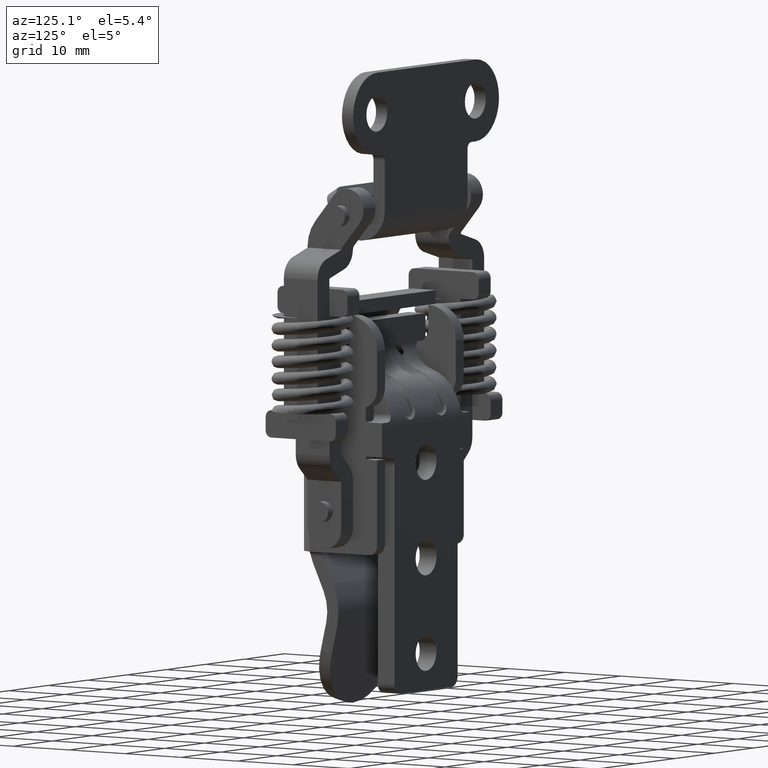
[diagram: clean part render]
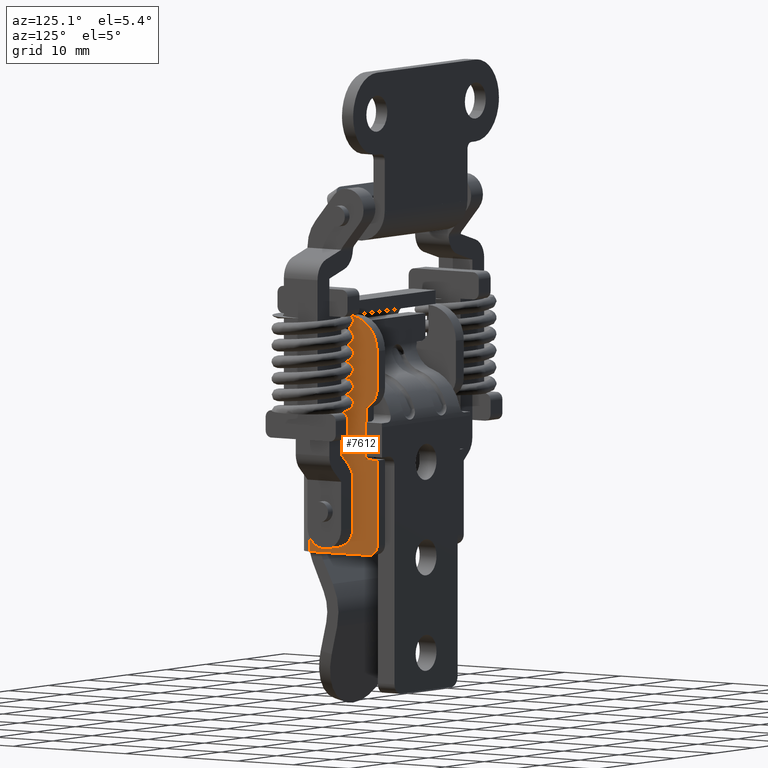
[diagram: same view with one face highlighted and labeled with its STEP entity id]
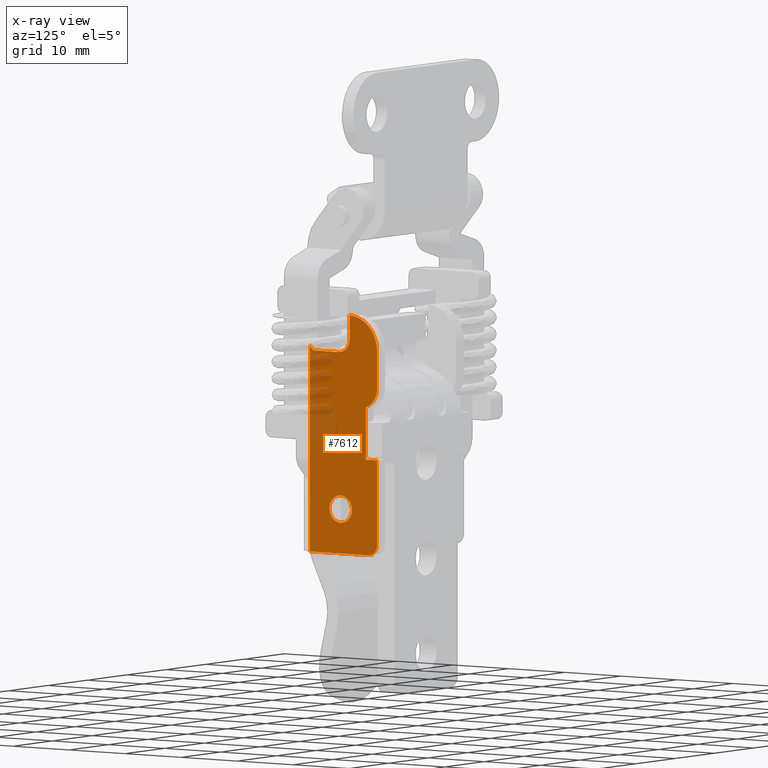
[diagram: x-ray of the same camera — body ghosted, the highlighted face saturated]
A machine part, auxiliary view. The second image highlights one B-rep face of the part: STEP entity #7612.
The next image is the same camera in x-ray: the body ghosted, the highlighted face saturated — about 15% of this face is hidden behind the body in this view.
In plain terms, the highlighted face is a freeform B-spline surface patch.
Its self-contained STEP definition (entity closure, byte-faithful):
#5285=CARTESIAN_POINT('',(-4.291483995006892,-11.000000000000121,-41.972888630195001));
#5286=VERTEX_POINT('',#5285);
#5292=CARTESIAN_POINT('',(-4.999999999999999,-11.000000000000121,-43.499999954217863));
#5293=VERTEX_POINT('',#5292);
#5294=CARTESIAN_POINT('',(-4.291483995006892,-11.000000000000121,-41.972888630195001));
#5295=CARTESIAN_POINT('',(-4.499059651854829,-11.000000000000140,-42.147990680828123));
#5296=CARTESIAN_POINT('',(-4.760872264341311,-11.000000000000130,-42.482652996387984));
#5297=CARTESIAN_POINT('',(-4.962180740116382,-11.000000000000091,-43.029425976598610));
#5298=CARTESIAN_POINT('',(-5.000043574163755,-11.000000000000140,-43.337094152139237));
#5299=CARTESIAN_POINT('',(-4.999999999999999,-11.000000000000121,-43.499999954217863));
#5300=B_SPLINE_CURVE_WITH_KNOTS('',3,(#5294,#5295,#5296,#5297,#5298,#5299),.UNSPECIFIED.,.F.,.U.,(4,1,1,4),(0.000000020191724,0.814527024682359,1.248940701058276,1.737656673800343),.UNSPECIFIED.);
#5301=EDGE_CURVE('',#5286,#5293,#5300,.T.);
#5303=CARTESIAN_POINT('',(-3.0,-11.000000000000121,-45.500000000000000));
#5304=VERTEX_POINT('',#5303);
#5305=CARTESIAN_POINT('',(-4.999999999999999,-11.000000000000121,-43.499999954217863));
#5306=CARTESIAN_POINT('',(-5.000232893937127,-11.000000000000121,-43.745481762936073));
#5307=CARTESIAN_POINT('',(-4.935928455159613,-11.000000000000130,-44.088923891692872));
#5308=CARTESIAN_POINT('',(-4.732438216345659,-11.000000000000110,-44.519042590588462));
#5309=CARTESIAN_POINT('',(-4.505257277712324,-11.000000000000091,-44.841675177487829));
#5310=CARTESIAN_POINT('',(-4.187660449178591,-11.000000000000240,-45.129507053089696));
#5311=CARTESIAN_POINT('',(-3.686979104396376,-10.999999999999950,-45.413234050378669));
#5312=CARTESIAN_POINT('',(-3.278236847398707,-11.000000000000171,-45.500363365382889));
#5313=CARTESIAN_POINT('',(-3.0,-11.000000000000121,-45.500000000000000));
#5314=B_SPLINE_CURVE_WITH_KNOTS('',3,(#5305,#5306,#5307,#5308,#5309,#5310,#5311,#5312,#5313),.UNSPECIFIED.,.F.,.U.,(4,1,1,1,1,1,4),(0.000000109287217,0.736328465034302,1.030872301551919,1.423597483130916,1.914442521069211,2.307164167641461,3.141671514477208),.UNSPECIFIED.);
#5315=EDGE_CURVE('',#5293,#5304,#5314,.T.);
#5317=CARTESIAN_POINT('',(-1.0,-11.000000000000121,-43.500000045782151));
#5318=VERTEX_POINT('',#5317);
#5319=CARTESIAN_POINT('',(-3.0,-11.000000000000121,-45.500000000000000));
#5320=CARTESIAN_POINT('',(-2.754525882083019,-11.000000000000121,-45.500229522294468));
#5321=CARTESIAN_POINT('',(-2.345636194098678,-11.000000000000099,-45.423694946626142));
#5322=CARTESIAN_POINT('',(-1.865842955906063,-11.000000000000149,-45.167210674664631));
#5323=CARTESIAN_POINT('',(-1.567084296858053,-11.000000000000080,-44.909441657476300));
#5324=CARTESIAN_POINT('',(-1.296400857213571,-11.000000000000130,-44.579732225921909));
#5325=CARTESIAN_POINT('',(-1.065864801101518,-11.000000000000091,-44.121726346756482));
#5326=CARTESIAN_POINT('',(-0.999885430079744,-11.000000000000190,-43.712721838774428));
#5327=CARTESIAN_POINT('',(-1.0,-11.000000000000121,-43.500000045782151));
#5328=B_SPLINE_CURVE_WITH_KNOTS('',3,(#5319,#5320,#5321,#5322,#5323,#5324,#5325,#5326,#5327),.UNSPECIFIED.,.F.,.U.,(4,1,1,1,1,1,4),(0.000000109351611,0.736328452988263,1.227229082603999,1.619910960187034,1.914442489567019,2.503526581004880,3.141671462868775),.UNSPECIFIED.);
#5329=EDGE_CURVE('',#5304,#5318,#5328,.T.);
#5331=CARTESIAN_POINT('',(-1.549251244249942,-11.000000000000121,-42.123290879680731));
#5332=VERTEX_POINT('',#5331);
#5333=CARTESIAN_POINT('',(-1.0,-11.000000000000121,-43.500000045782151));
#5334=CARTESIAN_POINT('',(-0.999808939140219,-11.000000000000140,-43.262714713948220));
#5335=CARTESIAN_POINT('',(-1.091199977921949,-11.000000000000091,-42.756731853773992));
#5336=CARTESIAN_POINT('',(-1.363884933868887,-11.000000000000130,-42.318146222506890));
#5337=CARTESIAN_POINT('',(-1.549251244249942,-11.000000000000121,-42.123290879680731));
#5338=B_SPLINE_CURVE_WITH_KNOTS('',3,(#5333,#5334,#5335,#5336,#5337),.UNSPECIFIED.,.F.,.U.,(4,1,4),(0.000000029561401,0.711790516781408,1.518472064632104),.UNSPECIFIED.);
#5339=EDGE_CURVE('',#5318,#5332,#5338,.T.);
#5422=CARTESIAN_POINT('',(-3.0,-11.000000000000121,-41.499999999999993));
#5423=VERTEX_POINT('',#5422);
#5424=CARTESIAN_POINT('',(-1.549251244249942,-11.000000000000121,-42.123290879680731));
#5425=CARTESIAN_POINT('',(-1.723677819643127,-11.000000000000140,-41.939120538585527));
#5426=CARTESIAN_POINT('',(-2.059825475271998,-11.000000000000091,-41.698961127562519));
#5427=CARTESIAN_POINT('',(-2.577310564112401,-11.000000000000171,-41.529262185559077));
#5428=CARTESIAN_POINT('',(-2.864737635372440,-11.000000000000080,-41.499987124638743));
#5429=CARTESIAN_POINT('',(-3.0,-11.000000000000121,-41.499999999999993));
#5430=B_SPLINE_CURVE_WITH_KNOTS('',3,(#5424,#5425,#5426,#5427,#5428,#5429),.UNSPECIFIED.,.F.,.U.,(4,1,1,4),(0.000000025641365,0.760878537669743,1.217399798464708,1.623199722740326),.UNSPECIFIED.);
#5431=EDGE_CURVE('',#5332,#5423,#5430,.T.);
#5433=CARTESIAN_POINT('',(-3.0,-11.000000000000121,-41.499999999999993));
#5434=CARTESIAN_POINT('',(-3.160876361157747,-11.000000000000110,-41.499967234089077));
#5435=CARTESIAN_POINT('',(-3.467983732235572,-11.000000000000140,-41.537250085232976));
#5436=CARTESIAN_POINT('',(-3.910096836120375,-11.000000000000110,-41.699140412338217));
#5437=CARTESIAN_POINT('',(-4.168669120274050,-11.000000000000140,-41.868972966070643));
#5438=CARTESIAN_POINT('',(-4.291483995006892,-11.000000000000121,-41.972888630195001));
#5439=B_SPLINE_CURVE_WITH_KNOTS('',3,(#5433,#5434,#5435,#5436,#5437,#5438),.UNSPECIFIED.,.F.,.U.,(4,1,1,4),(0.000000028633374,0.482632374895624,0.921385096471227,1.404017442734281),.UNSPECIFIED.);
#5440=EDGE_CURVE('',#5423,#5286,#5439,.T.);
#6251=CARTESIAN_POINT('',(-8.500000000000000,-11.0,-19.500000000000000));
#6252=VERTEX_POINT('',#6251);
#6253=CARTESIAN_POINT('',(-8.500000000000000,-11.0,-50.0));
#6254=VERTEX_POINT('',#6253);
#6255=CARTESIAN_POINT('',(-8.500000000000000,-11.0,-19.500000000000000));
#6256=CARTESIAN_POINT('',(-8.500000000000000,-11.0,-50.0));
#6257=QUASI_UNIFORM_CURVE('',1,(#6255,#6256),.UNSPECIFIED.,.F.,.U.);
#6258=EDGE_CURVE('',#6252,#6254,#6257,.T.);
#6376=CARTESIAN_POINT('',(-7.500000000000000,-11.0,-20.500000000000000));
#6377=VERTEX_POINT('',#6376);
#6378=CARTESIAN_POINT('',(-7.500000000000000,-11.0,-20.500000000000000));
#6379=CARTESIAN_POINT('',(-7.639114365187614,-11.0,-20.500173166053472));
#6380=CARTESIAN_POINT('',(-7.908911365779431,-11.000000000000080,-20.442758200303089));
#6381=CARTESIAN_POINT('',(-8.243171951140948,-11.0,-20.207554079325650));
#6382=CARTESIAN_POINT('',(-8.452761596919794,-11.000000000000149,-19.876305140630549));
#6383=CARTESIAN_POINT('',(-8.500082295815099,-10.999999999999950,-19.622723591202480));
#6384=CARTESIAN_POINT('',(-8.500000000000000,-11.0,-19.500000000000000));
#6385=B_SPLINE_CURVE_WITH_KNOTS('',3,(#6378,#6379,#6380,#6381,#6382,#6383,#6384),.UNSPECIFIED.,.F.,.U.,(4,1,1,1,4),(0.000000217520590,0.417255448876048,0.809930199186788,1.202673212298888,1.570835744366267),.UNSPECIFIED.);
#6386=EDGE_CURVE('',#6377,#6252,#6385,.T.);
#7010=CARTESIAN_POINT('',(-1.400000000000000,-11.000000000000121,-18.500000000000000));
#7011=VERTEX_POINT('',#7010);
#7012=CARTESIAN_POINT('',(-1.400000000000000,-11.0,-15.001000100020200));
#7013=VERTEX_POINT('',#7012);
#7014=CARTESIAN_POINT('',(-1.400000000000000,-11.000000000000121,-18.500000000000000));
#7015=CARTESIAN_POINT('',(-1.400000000000000,-11.0,-15.001000100020200));
#7016=QUASI_UNIFORM_CURVE('',1,(#7014,#7015),.UNSPECIFIED.,.F.,.U.);
#7017=EDGE_CURVE('',#7011,#7013,#7016,.T.);
#7091=CARTESIAN_POINT('',(-3.400000000000000,-11.000000000000121,-20.500000000000000));
#7092=VERTEX_POINT('',#7091);
#7093=CARTESIAN_POINT('',(-3.400000000000000,-11.000000000000121,-20.500000000000000));
#7094=CARTESIAN_POINT('',(-3.154547919894856,-11.000000000000149,-20.500198515271979));
#7095=CARTESIAN_POINT('',(-2.712865042211105,-11.000000000000060,-20.417651658598711));
#7096=CARTESIAN_POINT('',(-2.209212151610323,-11.000000000000210,-20.132246367744401));
#7097=CARTESIAN_POINT('',(-1.875822816006951,-10.999999999999970,-19.814765183649801));
#7098=CARTESIAN_POINT('',(-1.648618051955657,-11.000000000000330,-19.492162623796499));
#7099=CARTESIAN_POINT('',(-1.455345840241121,-10.999999999999931,-19.056259940534972));
#7100=CARTESIAN_POINT('',(-1.399893200525664,-11.000000000000201,-18.712724541039211));
#7101=CARTESIAN_POINT('',(-1.400000000000000,-11.000000000000121,-18.500000000000000));
#7102=B_SPLINE_CURVE_WITH_KNOTS('',3,(#7093,#7094,#7095,#7096,#7097,#7098,#7099,#7100,#7101),.UNSPECIFIED.,.F.,.U.,(4,1,1,1,1,1,4),(0.000000109320285,0.736328459012082,1.325418916271050,1.718074126515646,2.110799304877890,2.503526601580130,3.141671488672994),.UNSPECIFIED.);
#7103=EDGE_CURVE('',#7092,#7011,#7102,.T.);
#7190=CARTESIAN_POINT('',(-7.500000000000000,-11.0,-20.500000000000000));
#7191=CARTESIAN_POINT('',(-3.400000000000000,-11.000000000000121,-20.500000000000000));
#7192=QUASI_UNIFORM_CURVE('',1,(#7190,#7191),.UNSPECIFIED.,.F.,.U.);
#7193=EDGE_CURVE('',#6377,#7092,#7192,.T.);
#7519=CARTESIAN_POINT('',(-9.099399976741672,-11.0,-13.252800451396631));
#7520=CARTESIAN_POINT('',(4.099400298606753,-11.0,-13.252800451396631));
#7521=CARTESIAN_POINT('',(-9.099399976741672,-11.0,-51.748200900285347));
#7522=CARTESIAN_POINT('',(4.099400298606753,-11.0,-51.748200900285347));
#7523=B_SPLINE_SURFACE_WITH_KNOTS('',1,1,((#7519,#7521),(#7520,#7522)),.UNSPECIFIED.,.F.,.F.,.U.,(2,2),(2,2),(0.0,13.198800275348431),(0.0,38.495400448888716),.UNSPECIFIED.);
#7524=ORIENTED_EDGE('',*,*,#6386,.T.);
#7525=ORIENTED_EDGE('',*,*,#6258,.T.);
#7526=CARTESIAN_POINT('',(2.0,-11.000000000000121,-50.0));
#7527=VERTEX_POINT('',#7526);
#7528=CARTESIAN_POINT('',(2.0,-11.000000000000121,-50.0));
#7529=CARTESIAN_POINT('',(-8.500000000000000,-11.0,-50.0));
#7530=QUASI_UNIFORM_CURVE('',1,(#7528,#7529),.UNSPECIFIED.,.F.,.U.);
#7531=EDGE_CURVE('',#7527,#6254,#7530,.T.);
#7532=ORIENTED_EDGE('',*,*,#7531,.F.);
#7533=CARTESIAN_POINT('',(3.500000000000000,-11.000000000000121,-48.500000000000000));
#7534=VERTEX_POINT('',#7533);
#7535=CARTESIAN_POINT('',(2.0,-11.000000000000121,-50.0));
#7536=CARTESIAN_POINT('',(2.147266597782134,-11.000000000000140,-50.000061847827332));
#7537=CARTESIAN_POINT('',(2.454039735724916,-11.000000000000099,-49.954462646761122));
#7538=CARTESIAN_POINT('',(2.889713633466754,-11.000000000000171,-49.741987644571132));
#7539=CARTESIAN_POINT('',(3.206655002869555,-11.000000000000091,-49.424884837213362));
#7540=CARTESIAN_POINT('',(3.438888341866453,-11.000000000000140,-49.003016291768432));
#7541=CARTESIAN_POINT('',(3.500177050714398,-11.000000000000099,-48.696379835771197));
#7542=CARTESIAN_POINT('',(3.500000000000000,-11.000000000000121,-48.500000000000000));
#7543=B_SPLINE_CURVE_WITH_KNOTS('',3,(#7535,#7536,#7537,#7538,#7539,#7540,#7541,#7542),.UNSPECIFIED.,.F.,.U.,(4,1,1,1,1,4),(0.000000155795255,0.441797845154262,0.920430213992676,1.435821382454144,1.767190279744125,2.356253616513999),.UNSPECIFIED.);
#7544=EDGE_CURVE('',#7527,#7534,#7543,.T.);
#7545=ORIENTED_EDGE('',*,*,#7544,.T.);
#7546=CARTESIAN_POINT('',(3.500000000000000,-11.000000000000121,-36.0));
#7547=VERTEX_POINT('',#7546);
#7548=CARTESIAN_POINT('',(3.500000000000000,-11.000000000000121,-36.0));
#7549=CARTESIAN_POINT('',(3.500000000000000,-11.000000000000121,-48.500000000000000));
#7550=QUASI_UNIFORM_CURVE('',1,(#7548,#7549),.UNSPECIFIED.,.F.,.U.);
#7551=EDGE_CURVE('',#7547,#7534,#7550,.T.);
#7552=ORIENTED_EDGE('',*,*,#7551,.F.);
#7553=CARTESIAN_POINT('',(1.500000000000000,-11.000000000000121,-36.0));
#7554=VERTEX_POINT('',#7553);
#7555=CARTESIAN_POINT('',(1.500000000000000,-11.000000000000121,-36.0));
#7556=CARTESIAN_POINT('',(3.500000000000000,-11.000000000000121,-36.0));
#7557=QUASI_UNIFORM_CURVE('',1,(#7555,#7556),.UNSPECIFIED.,.F.,.U.);
#7558=EDGE_CURVE('',#7554,#7547,#7557,.T.);
#7559=ORIENTED_EDGE('',*,*,#7558,.F.);
#7560=CARTESIAN_POINT('',(1.500000000000000,-11.000000000000121,-28.328427124746199));
#7561=VERTEX_POINT('',#7560);
#7562=CARTESIAN_POINT('',(1.500000000000000,-11.000000000000121,-28.328427124746199));
#7563=CARTESIAN_POINT('',(1.500000000000000,-11.000000000000121,-36.0));
#7564=QUASI_UNIFORM_CURVE('',1,(#7562,#7563),.UNSPECIFIED.,.F.,.U.);
#7565=EDGE_CURVE('',#7561,#7554,#7564,.T.);
#7566=ORIENTED_EDGE('',*,*,#7565,.F.);
#7567=CARTESIAN_POINT('',(3.500000000000000,-11.000000000000121,-25.500000000000000));
#7568=VERTEX_POINT('',#7567);
#7569=CARTESIAN_POINT('',(1.500000000000000,-11.000000000000121,-28.328427124746199));
#7570=CARTESIAN_POINT('',(1.844686396224655,-11.000000000000140,-28.206897494793019));
#7571=CARTESIAN_POINT('',(2.403623855670141,-11.000000000000099,-27.884357745287140));
#7572=CARTESIAN_POINT('',(2.986588196922687,-11.000000000000130,-27.233997340507099));
#7573=CARTESIAN_POINT('',(3.389636870571177,-11.000000000000099,-26.461492585287420));
#7574=CARTESIAN_POINT('',(3.500308574393389,-11.000000000000130,-25.865490502264940));
#7575=CARTESIAN_POINT('',(3.500000000000000,-11.000000000000121,-25.500000000000000));
#7576=B_SPLINE_CURVE_WITH_KNOTS('',3,(#7569,#7570,#7571,#7572,#7573,#7574,#7575),.UNSPECIFIED.,.F.,.U.,(4,1,1,1,4),(0.000000064978295,1.096340534410257,1.904155839581218,2.596594696776416,3.692935166208879),.UNSPECIFIED.);
#7577=EDGE_CURVE('',#7561,#7568,#7576,.T.);
#7578=ORIENTED_EDGE('',*,*,#7577,.T.);
#7579=CARTESIAN_POINT('',(3.500000000000000,-11.000000000000121,-20.0));
#7580=VERTEX_POINT('',#7579);
#7581=CARTESIAN_POINT('',(3.500000000000000,-11.000000000000121,-20.0));
#7582=CARTESIAN_POINT('',(3.500000000000000,-11.000000000000121,-25.500000000000000));
#7583=QUASI_UNIFORM_CURVE('',1,(#7581,#7582),.UNSPECIFIED.,.F.,.U.);
#7584=EDGE_CURVE('',#7580,#7568,#7583,.T.);
#7585=ORIENTED_EDGE('',*,*,#7584,.F.);
#7586=CARTESIAN_POINT('',(3.500000000000000,-11.000000000000121,-20.0));
#7587=CARTESIAN_POINT('',(3.500258094920274,-11.000000000000110,-19.495149275057219));
#7588=CARTESIAN_POINT('',(3.358066510632696,-11.000000000000140,-18.566457373515249));
#7589=CARTESIAN_POINT('',(2.789464296754239,-11.000000000000121,-17.326726546451582));
#7590=CARTESIAN_POINT('',(2.004242870470890,-11.000000000000091,-16.364745635765821));
#7591=CARTESIAN_POINT('',(1.126386520244299,-11.000000000000060,-15.705816697041669));
#7592=CARTESIAN_POINT('',(0.302845439713068,-11.000000000000050,-15.314098972814589));
#7593=CARTESIAN_POINT('',(-0.512816990385624,-11.000000000000030,-15.073754601089609));
#7594=CARTESIAN_POINT('',(-1.076981716916125,-11.000000000000011,-15.007423450052491));
#7595=CARTESIAN_POINT('',(-1.400000000000000,-11.0,-15.001000100020200));
#7596=B_SPLINE_CURVE_WITH_KNOTS('',3,(#7586,#7587,#7588,#7589,#7590,#7591,#7592,#7593,#7594,#7595),.UNSPECIFIED.,.F.,.U.,(4,1,1,1,1,1,1,4),(0.000000096023732,1.514456843942405,2.786618473103999,4.058733428070166,5.209726115618079,6.057833802264072,6.784776746965807,7.754022387950409),.UNSPECIFIED.);
#7597=EDGE_CURVE('',#7580,#7013,#7596,.T.);
#7598=ORIENTED_EDGE('',*,*,#7597,.T.);
#7599=ORIENTED_EDGE('',*,*,#7017,.F.);
#7600=ORIENTED_EDGE('',*,*,#7103,.F.);
#7601=ORIENTED_EDGE('',*,*,#7193,.F.);
#7602=EDGE_LOOP('',(#7524,#7525,#7532,#7545,#7552,#7559,#7566,#7578,#7585,#7598,#7599,#7600,#7601));
#7603=FACE_OUTER_BOUND('',#7602,.T.);
#7604=ORIENTED_EDGE('',*,*,#5315,.F.);
#7605=ORIENTED_EDGE('',*,*,#5301,.F.);
#7606=ORIENTED_EDGE('',*,*,#5440,.F.);
#7607=ORIENTED_EDGE('',*,*,#5431,.F.);
#7608=ORIENTED_EDGE('',*,*,#5339,.F.);
#7609=ORIENTED_EDGE('',*,*,#5329,.F.);
#7610=EDGE_LOOP('',(#7604,#7605,#7606,#7607,#7608,#7609));
#7611=FACE_BOUND('',#7610,.T.);
#7612=ADVANCED_FACE('',(#7603,#7611),#7523,.F.);